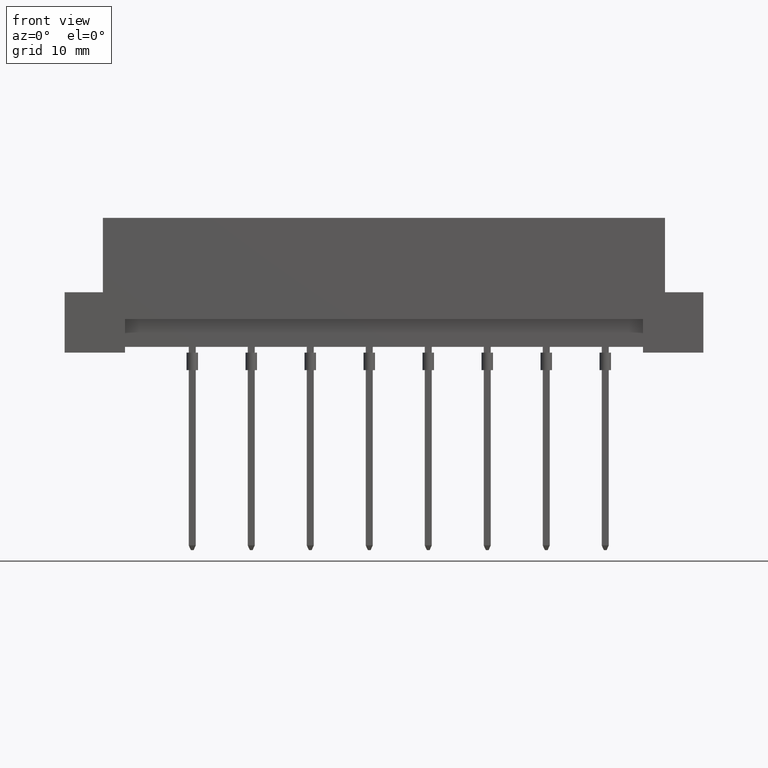
[diagram: clean part render]
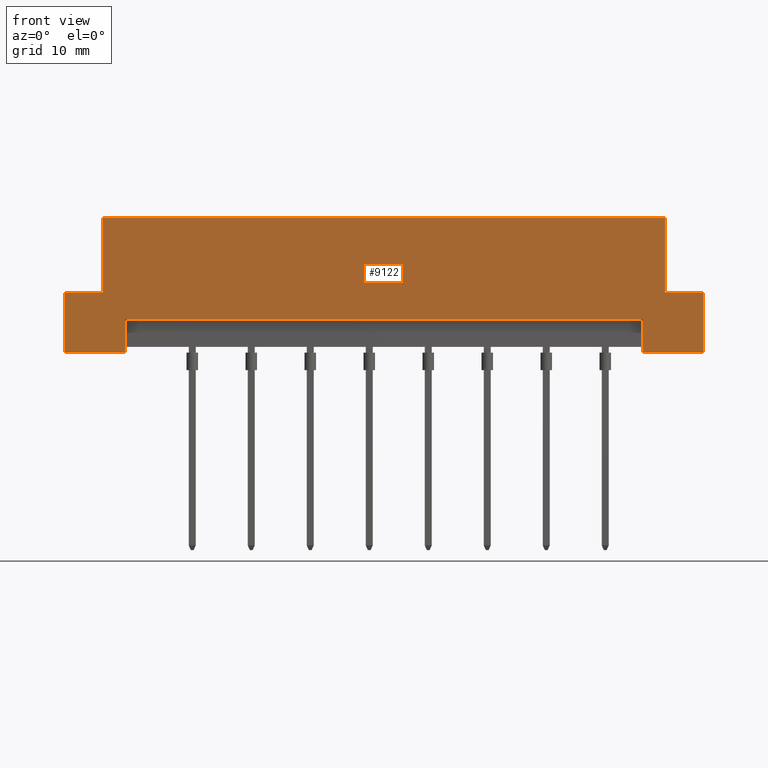
[diagram: same view with one face highlighted and labeled with its STEP entity id]
A machine part, front view. The second image highlights one B-rep face of the part: STEP entity #9122.
In plain terms, the highlighted planar face has unit normal (0, 1, 0).
Its self-contained STEP definition (entity closure, byte-faithful):
#315 = CARTESIAN_POINT ( 'NONE',  ( 24.19999999999999929, 0.0000000000000000000, 5.199999999999995737 ) ) ;
#350 = EDGE_CURVE ( 'NONE', #6703, #662, #7443, .T. ) ;
#389 = CARTESIAN_POINT ( 'NONE',  ( -27.50000000000000000, 0.0000000000000000000, 0.0000000000000000000 ) ) ;
#473 = LINE ( 'NONE', #7013, #2186 ) ;
#536 = VERTEX_POINT ( 'NONE', #2616 ) ;
#662 = VERTEX_POINT ( 'NONE', #7140 ) ;
#727 = LINE ( 'NONE', #5795, #1092 ) ;
#755 = LINE ( 'NONE', #4268, #8320 ) ;
#786 = CARTESIAN_POINT ( 'NONE',  ( 24.19999999999999929, 0.0000000000000000000, 5.199999999999995737 ) ) ;
#879 = ORIENTED_EDGE ( 'NONE', *, *, #2136, .F. ) ;
#1022 = EDGE_CURVE ( 'NONE', #7812, #2282, #2492, .T. ) ;
#1073 = ORIENTED_EDGE ( 'NONE', *, *, #6453, .F. ) ;
#1092 = VECTOR ( 'NONE', #4439, 1000.000000000000000 ) ;
#1153 = LINE ( 'NONE', #1808, #3340 ) ;
#1157 = ORIENTED_EDGE ( 'NONE', *, *, #5939, .F. ) ;
#1512 = VERTEX_POINT ( 'NONE', #3848 ) ;
#1808 = CARTESIAN_POINT ( 'NONE',  ( 22.30000000000000071, 0.0000000000000000000, 0.5000000000000000000 ) ) ;
#1847 = VECTOR ( 'NONE', #7929, 1000.000000000000000 ) ;
#1901 = CARTESIAN_POINT ( 'NONE',  ( -27.49999999999999645, 0.0000000000000000000, 11.59999999999999964 ) ) ;
#1923 = ORIENTED_EDGE ( 'NONE', *, *, #2803, .F. ) ;
#2047 = CARTESIAN_POINT ( 'NONE',  ( -24.19999999999999929, 0.0000000000000000000, 5.199999999999995737 ) ) ;
#2064 = EDGE_LOOP ( 'NONE', ( #7921, #4843, #879, #8851, #1157, #5951, #6160, #1923, #6995, #7889, #1073, #6933 ) ) ;
#2128 = VECTOR ( 'NONE', #6357, 1000.000000000000000 ) ;
#2136 = EDGE_CURVE ( 'NONE', #536, #8723, #727, .T. ) ;
#2186 = VECTOR ( 'NONE', #5480, 1000.000000000000000 ) ;
#2282 = VERTEX_POINT ( 'NONE', #3869 ) ;
#2492 = LINE ( 'NONE', #6024, #4634 ) ;
#2553 = VERTEX_POINT ( 'NONE', #4010 ) ;
#2616 = CARTESIAN_POINT ( 'NONE',  ( 27.50000000000000000, 0.0000000000000000000, -6.735557395310442615E-15 ) ) ;
#2651 = CARTESIAN_POINT ( 'NONE',  ( 22.30000000000000071, 0.0000000000000000000, 2.899999999999999911 ) ) ;
#2739 = DIRECTION ( 'NONE',  ( -0.0000000000000000000, 1.000000000000000000, 0.0000000000000000000 ) ) ;
#2803 = EDGE_CURVE ( 'NONE', #6996, #7812, #473, .T. ) ;
#2805 = DIRECTION ( 'NONE',  ( 2.990902544787598592E-16, -0.0000000000000000000, -1.000000000000000000 ) ) ;
#2824 = PLANE ( 'NONE',  #6942 ) ;
#2997 = CARTESIAN_POINT ( 'NONE',  ( -22.30000000000000071, 0.0000000000000000000, 2.899999999999999911 ) ) ;
#3307 = CARTESIAN_POINT ( 'NONE',  ( -24.19999999999999929, 0.0000000000000000000, 11.59999999999999609 ) ) ;
#3340 = VECTOR ( 'NONE', #7504, 1000.000000000000000 ) ;
#3721 = EDGE_CURVE ( 'NONE', #2553, #536, #755, .T. ) ;
#3848 = CARTESIAN_POINT ( 'NONE',  ( 22.30000000000000071, 0.0000000000000000000, 2.899999999999999911 ) ) ;
#3852 = DIRECTION ( 'NONE',  ( 2.990902544787598592E-16, 0.0000000000000000000, 1.000000000000000000 ) ) ;
#3869 = CARTESIAN_POINT ( 'NONE',  ( 24.19999999999999929, 0.0000000000000000000, 11.59999999999999609 ) ) ;
#4010 = CARTESIAN_POINT ( 'NONE',  ( 27.50000000000000000, 0.0000000000000000000, 5.199999999999995737 ) ) ;
#4196 = LINE ( 'NONE', #5700, #1847 ) ;
#4268 = CARTESIAN_POINT ( 'NONE',  ( 27.50000000000000000, 0.0000000000000000000, -6.735557395310442615E-15 ) ) ;
#4439 = DIRECTION ( 'NONE',  ( -1.000000000000000000, -0.0000000000000000000, 1.224646799147353207E-16 ) ) ;
#4515 = LINE ( 'NONE', #389, #6038 ) ;
#4634 = VECTOR ( 'NONE', #9026, 1000.000000000000000 ) ;
#4843 = ORIENTED_EDGE ( 'NONE', *, *, #7699, .T. ) ;
#4890 = EDGE_CURVE ( 'NONE', #6081, #6996, #6304, .T. ) ;
#4945 = DIRECTION ( 'NONE',  ( -0.0000000000000000000, -0.0000000000000000000, 1.000000000000000000 ) ) ;
#5480 = DIRECTION ( 'NONE',  ( -0.0000000000000000000, -0.0000000000000000000, 1.000000000000000000 ) ) ;
#5558 = CARTESIAN_POINT ( 'NONE',  ( 22.30000000000000071, 0.0000000000000000000, 0.0000000000000000000 ) ) ;
#5615 = LINE ( 'NONE', #786, #7423 ) ;
#5700 = CARTESIAN_POINT ( 'NONE',  ( 27.50000000000000000, 0.0000000000000000000, 5.199999999999995737 ) ) ;
#5795 = CARTESIAN_POINT ( 'NONE',  ( -27.50000000000000000, 0.0000000000000000000, 0.0000000000000000000 ) ) ;
#5925 = EDGE_CURVE ( 'NONE', #9052, #2282, #5615, .T. ) ;
#5939 = EDGE_CURVE ( 'NONE', #9052, #2553, #4196, .T. ) ;
#5951 = ORIENTED_EDGE ( 'NONE', *, *, #5925, .T. ) ;
#6024 = CARTESIAN_POINT ( 'NONE',  ( -27.49999999999999645, 0.0000000000000000000, 11.59999999999999964 ) ) ;
#6038 = VECTOR ( 'NONE', #3852, 1000.000000000000000 ) ;
#6077 = DIRECTION ( 'NONE',  ( -1.000000000000000000, -0.0000000000000000000, 1.224646799147353207E-16 ) ) ;
#6081 = VERTEX_POINT ( 'NONE', #6722 ) ;
#6155 = LINE ( 'NONE', #6827, #8438 ) ;
#6160 = ORIENTED_EDGE ( 'NONE', *, *, #1022, .F. ) ;
#6242 = LINE ( 'NONE', #2651, #8163 ) ;
#6275 = CARTESIAN_POINT ( 'NONE',  ( -27.50000000000000000, 0.0000000000000000000, 0.0000000000000000000 ) ) ;
#6304 = LINE ( 'NONE', #7729, #2128 ) ;
#6357 = DIRECTION ( 'NONE',  ( 1.000000000000000000, 0.0000000000000000000, 0.0000000000000000000 ) ) ;
#6382 = EDGE_CURVE ( 'NONE', #7799, #6081, #4515, .T. ) ;
#6453 = EDGE_CURVE ( 'NONE', #662, #7799, #6155, .T. ) ;
#6703 = VERTEX_POINT ( 'NONE', #2997 ) ;
#6722 = CARTESIAN_POINT ( 'NONE',  ( -27.50000000000000000, 0.0000000000000000000, 5.199999999999995737 ) ) ;
#6827 = CARTESIAN_POINT ( 'NONE',  ( -27.50000000000000000, 0.0000000000000000000, 0.0000000000000000000 ) ) ;
#6933 = ORIENTED_EDGE ( 'NONE', *, *, #350, .F. ) ;
#6940 = DIRECTION ( 'NONE',  ( 0.0000000000000000000, -0.0000000000000000000, 1.000000000000000000 ) ) ;
#6942 = AXIS2_PLACEMENT_3D ( 'NONE', #1901, #2739, #6940 ) ;
#6995 = ORIENTED_EDGE ( 'NONE', *, *, #4890, .F. ) ;
#6996 = VERTEX_POINT ( 'NONE', #2047 ) ;
#7013 = CARTESIAN_POINT ( 'NONE',  ( -24.19999999999999929, 0.0000000000000000000, 5.199999999999995737 ) ) ;
#7140 = CARTESIAN_POINT ( 'NONE',  ( -22.30000000000000071, 0.0000000000000000000, 0.0000000000000000000 ) ) ;
#7423 = VECTOR ( 'NONE', #4945, 1000.000000000000000 ) ;
#7443 = LINE ( 'NONE', #8270, #7949 ) ;
#7452 = EDGE_CURVE ( 'NONE', #1512, #6703, #6242, .T. ) ;
#7504 = DIRECTION ( 'NONE',  ( -0.0000000000000000000, -0.0000000000000000000, -1.000000000000000000 ) ) ;
#7699 = EDGE_CURVE ( 'NONE', #1512, #8723, #1153, .T. ) ;
#7729 = CARTESIAN_POINT ( 'NONE',  ( -27.50000000000000000, 0.0000000000000000000, 5.199999999999995737 ) ) ;
#7799 = VERTEX_POINT ( 'NONE', #6275 ) ;
#7812 = VERTEX_POINT ( 'NONE', #3307 ) ;
#7889 = ORIENTED_EDGE ( 'NONE', *, *, #6382, .F. ) ;
#7921 = ORIENTED_EDGE ( 'NONE', *, *, #7452, .F. ) ;
#7929 = DIRECTION ( 'NONE',  ( 1.000000000000000000, -0.0000000000000000000, -0.0000000000000000000 ) ) ;
#7949 = VECTOR ( 'NONE', #8972, 1000.000000000000000 ) ;
#8163 = VECTOR ( 'NONE', #8402, 1000.000000000000000 ) ;
#8270 = CARTESIAN_POINT ( 'NONE',  ( -22.30000000000000071, 0.0000000000000000000, 0.5000000000000000000 ) ) ;
#8320 = VECTOR ( 'NONE', #2805, 1000.000000000000000 ) ;
#8402 = DIRECTION ( 'NONE',  ( -1.000000000000000000, 0.0000000000000000000, 0.0000000000000000000 ) ) ;
#8438 = VECTOR ( 'NONE', #6077, 1000.000000000000000 ) ;
#8723 = VERTEX_POINT ( 'NONE', #5558 ) ;
#8851 = ORIENTED_EDGE ( 'NONE', *, *, #3721, .F. ) ;
#8972 = DIRECTION ( 'NONE',  ( -0.0000000000000000000, -0.0000000000000000000, -1.000000000000000000 ) ) ;
#9026 = DIRECTION ( 'NONE',  ( 1.000000000000000000, 0.0000000000000000000, -1.261617073437677999E-16 ) ) ;
#9052 = VERTEX_POINT ( 'NONE', #315 ) ;
#9122 = ADVANCED_FACE ( 'NONE', ( #9277 ), #2824, .F. ) ;
#9277 = FACE_OUTER_BOUND ( 'NONE', #2064, .T. ) ;